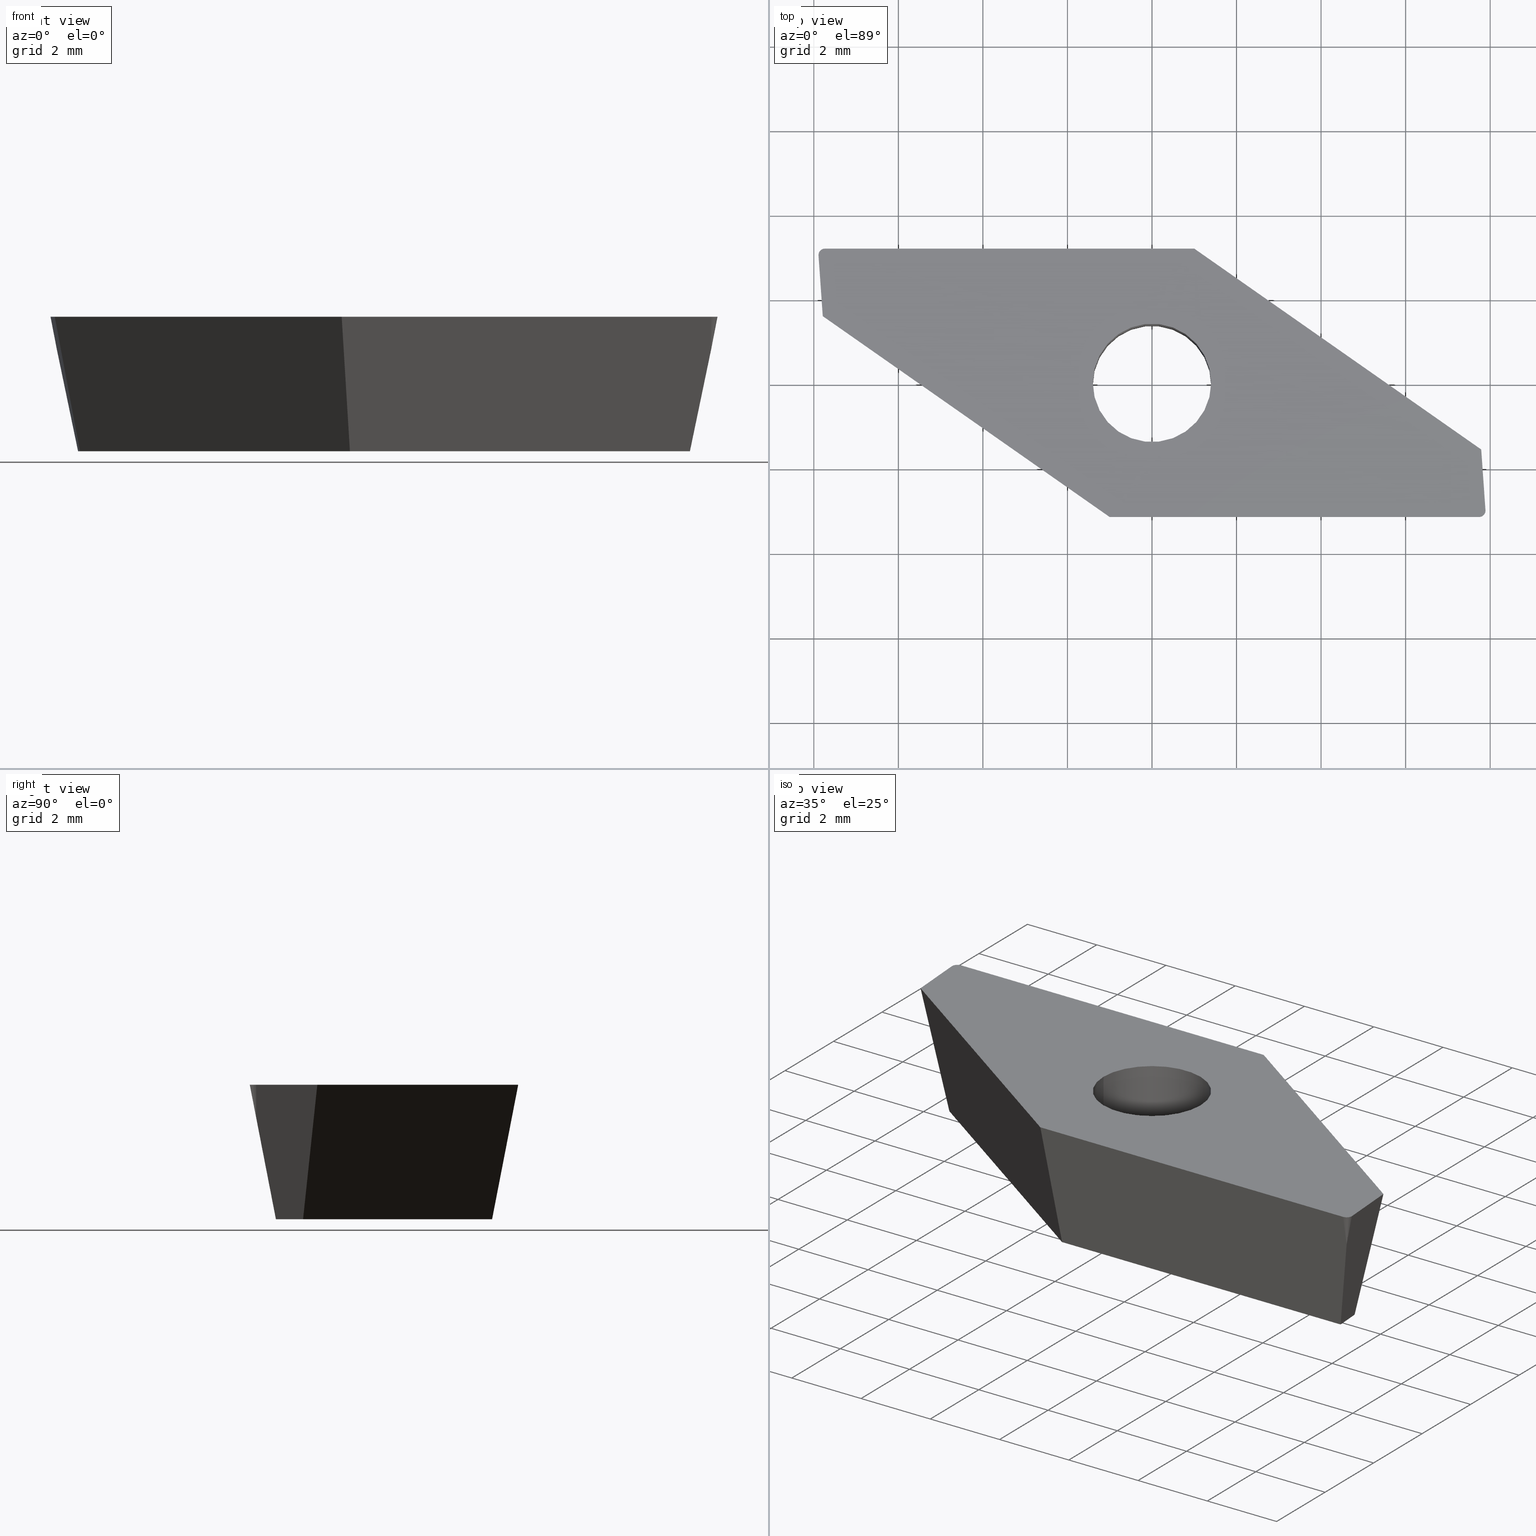
[diagram: canonical four-view strip — front | top / right | iso, engineering-drawing reading convention]
A machine part, canonical four-view strip (front | top / right | iso — engineering-drawing reading convention). The complete STEP part file that produces these views, byte-faithful:
ISO-10303-21;
HEADER;
FILE_DESCRIPTION (( 'STEP AP214' ),
    '1' );
FILE_NAME ('VP.. 1003015 .L.step',
    '2017-03-30T12:57:40',
    ( '' ),
    ( '' ),
    'SwSTEP 2.0',
    'SolidWorks 2016',
    '' );
FILE_SCHEMA (( 'AUTOMOTIVE_DESIGN' ));
ENDSEC;

DATA;
#1 = ADVANCED_FACE ( 'NONE', ( #128 ), #110, .T. ) ;
#2 = PRESENTATION_STYLE_ASSIGNMENT (( #65 ) ) ;
#3 = CARTESIAN_POINT ( 'NONE',  ( -7.788289079147451100, 1.577459403657728100, 0.0000000000000000000 ) ) ;
#4 = ORIENTED_EDGE ( 'NONE', *, *, #435, .T. ) ;
#5 = ORIENTED_EDGE ( 'NONE', *, *, #449, .T. ) ;
#6 = LINE ( 'NONE', #281, #9 ) ;
#7 = CARTESIAN_POINT ( 'NONE',  ( -7.739144693496299100, 3.024999999999999500, 0.0000000000000000000 ) ) ;
#8 = CARTESIAN_POINT ( 'NONE',  ( 1.001073654690764100, 3.174999999999999800, 0.0000000000000000000 ) ) ;
#9 = VECTOR ( 'NONE', #415, 999.9999999999998900 ) ;
#10 = LINE ( 'NONE', #142, #314 ) ;
#11 = FACE_OUTER_BOUND ( 'NONE', #346, .T. ) ;
#12 = EDGE_CURVE ( 'NONE', #273, #405, #113, .T. ) ;
#13 = CARTESIAN_POINT ( 'NONE',  ( 7.433744630409207400, -2.083801351424742400, -3.180000000000000200 ) ) ;
#14 = DIRECTION ( 'NONE',  ( 0.8191520442889951300, -0.5735764363510413900, 0.0000000000000000000 ) ) ;
#15 = LINE ( 'NONE', #68, #20 ) ;
#16 = PRODUCT_DEFINITION_FORMATION_WITH_SPECIFIED_SOURCE ( 'ANY', '', #377, .NOT_KNOWN. ) ;
#17 = PLANE ( 'NONE',  #450 ) ;
#18 =( NAMED_UNIT ( * ) SI_UNIT ( $, .STERADIAN. ) SOLID_ANGLE_UNIT ( ) );
#19 = EDGE_CURVE ( 'NONE', #359, #355, #259, .T. ) ;
#20 = VECTOR ( 'NONE', #178, 1000.000000000000000 ) ;
#21 = PRESENTATION_STYLE_ASSIGNMENT (( #269 ) ) ;
#22 = PRODUCT_DEFINITION_CONTEXT ( 'detailed design', #26, 'design' ) ;
#23 = PRODUCT_CONTEXT ( 'NONE', #38, 'mechanical' ) ;
#24 = APPLICATION_PROTOCOL_DEFINITION ( 'draft international standard', 'automotive_design', 1998, #38 ) ;
#25 = APPLICATION_PROTOCOL_DEFINITION ( 'draft international standard', 'automotive_design', 1998, #26 ) ;
#26 = APPLICATION_CONTEXT ( 'automotive_design' ) ;
#27 = PRODUCT_CONTEXT ( 'NONE', #35, 'mechanical' ) ;
#28 = AXIS2_PLACEMENT_3D ( 'NONE', #161, #192, #184 ) ;
#29 = LINE ( 'NONE', #119, #275 ) ;
#30 = DIRECTION ( 'NONE',  ( -0.2004640746510998100, 0.1869357738407769200, 0.9617011860410842300 ) ) ;
#31 = APPLICATION_PROTOCOL_DEFINITION ( 'draft international standard', 'automotive_design', 1998, #35 ) ;
#32 = VECTOR ( 'NONE', #30, 1000.000000000000100 ) ;
#33 = CARTESIAN_POINT ( 'NONE',  ( -7.888779301035271800, 3.014536528938380300, -1.291725244562808000E-016 ) ) ;
#34 = DIRECTION ( 'NONE',  ( 1.000000000000000000, 1.581056252441636400E-016, 0.0000000000000000000 ) ) ;
#35 = APPLICATION_CONTEXT ( 'automotive_design' ) ;
#36 = LINE ( 'NONE', #357, #32 ) ;
#37 = CARTESIAN_POINT ( 'NONE',  ( 7.900000000000002100, -3.174999999999999400, 0.0000000000000000000 ) ) ;
#38 = APPLICATION_CONTEXT ( 'automotive_design' ) ;
#39 = DIRECTION ( 'NONE',  ( 0.06005326349153968000, 0.1904646183547176200, 0.9798555172570124800 ) ) ;
#40 = DIRECTION ( 'NONE',  ( 1.000000000000000000, 0.0000000000000000000, 0.0000000000000000000 ) ) ;
#41 = FACE_OUTER_BOUND ( 'NONE', #208, .T. ) ;
#42 = EDGE_CURVE ( 'NONE', #355, #359, #111, .T. ) ;
#43 = DIRECTION ( 'NONE',  ( -0.8191520442889952400, 0.5735764363510411600, 0.0000000000000000000 ) ) ;
#44 = CARTESIAN_POINT ( 'NONE',  ( -7.237137390861797700, 2.556870616942053000, -3.180000000000000200 ) ) ;
#45 = DIRECTION ( 'NONE',  ( 0.0000000000000000000, 0.0000000000000000000, 1.000000000000000000 ) ) ;
#46 = DIRECTION ( 'NONE',  ( 1.000000000000000000, 0.0000000000000000000, 0.0000000000000000000 ) ) ;
#47 = VECTOR ( 'NONE', #39, 1000.000000000000100 ) ;
#48 = DIRECTION ( 'NONE',  ( 0.0000000000000000000, 0.0000000000000000000, 1.000000000000000000 ) ) ;
#49 = ORIENTED_EDGE ( 'NONE', *, *, #246, .T. ) ;
#50 = CONICAL_SURFACE ( 'NONE', #389, 0.1499999999999999700, 0.1919862177193767100 ) ;
#51 = VECTOR ( 'NONE', #245, 1000.000000000000000 ) ;
#52 = LINE ( 'NONE', #8, #47 ) ;
#53 = DIRECTION ( 'NONE',  ( -0.5630382217072208400, -0.8041019140508024500, -0.1908089953765452500 ) ) ;
#54 = DIRECTION ( 'NONE',  ( -1.000000000000000000, -1.581056252441636400E-016, 0.0000000000000000000 ) ) ;
#55 = LINE ( 'NONE', #79, #51 ) ;
#56 = FACE_OUTER_BOUND ( 'NONE', #166, .T. ) ;
#57 = SURFACE_SIDE_STYLE ('',( #218 ) ) ;
#58 = FILL_AREA_STYLE ('',( #59 ) ) ;
#59 = FILL_AREA_STYLE_COLOUR ( '', #264 ) ;
#60 =( NAMED_UNIT ( * ) SI_UNIT ( $, .STERADIAN. ) SOLID_ANGLE_UNIT ( ) );
#61 =( NAMED_UNIT ( * ) PLANE_ANGLE_UNIT ( ) SI_UNIT ( $, .RADIAN. ) );
#62 =( LENGTH_UNIT ( ) NAMED_UNIT ( * ) SI_UNIT ( .MILLI., .METRE. ) );
#63 = FACE_OUTER_BOUND ( 'NONE', #288, .T. ) ;
#64 = STYLED_ITEM ( 'NONE', ( #2 ), #363 ) ;
#65 = SURFACE_STYLE_USAGE ( .BOTH. , #57 ) ;
#66 = DIRECTION ( 'NONE',  ( -0.0000000000000000000, -0.0000000000000000000, -1.000000000000000000 ) ) ;
#67 =( GEOMETRIC_REPRESENTATION_CONTEXT ( 3 ) GLOBAL_UNCERTAINTY_ASSIGNED_CONTEXT ( ( #114 ) ) GLOBAL_UNIT_ASSIGNED_CONTEXT ( ( #73, #83, #82 ) ) REPRESENTATION_CONTEXT ( 'NONE', 'WORKASPACE' ) );
#68 = CARTESIAN_POINT ( 'NONE',  ( 7.900000000000002100, -3.174999999999999400, 0.0000000000000000000 ) ) ;
#69 = CIRCLE ( 'NONE', #112, 0.1499999999999999700 ) ;
#70 = DIRECTION ( 'NONE',  ( 1.157466550957716500E-017, -0.1908089953765452500, -0.9816271834476638600 ) ) ;
#71 = LINE ( 'NONE', #308, #385 ) ;
#72 = FACE_BOUND ( 'NONE', #254, .T. ) ;
#73 =( LENGTH_UNIT ( ) NAMED_UNIT ( * ) SI_UNIT ( .MILLI., .METRE. ) );
#74 = DIRECTION ( 'NONE',  ( -0.06975647374412560800, 0.9975640502598243100, 0.0000000000000000000 ) ) ;
#75 = CARTESIAN_POINT ( 'NONE',  ( -7.900000000000000400, 3.174999999999999400, 0.0000000000000000000 ) ) ;
#76 = LINE ( 'NONE', #37, #105 ) ;
#77 = PRODUCT_DEFINITION_SHAPE ( 'NONE', 'NONE',  #297 ) ;
#78 = SHAPE_DEFINITION_REPRESENTATION ( #77, #363 ) ;
#79 = CARTESIAN_POINT ( 'NONE',  ( 1.001073654690764100, 2.556870616942053400, -3.180000000000000200 ) ) ;
#80 = DIRECTION ( 'NONE',  ( 0.8191520442889951300, -0.5735764363510413900, -0.0000000000000000000 ) ) ;
#81 = PRODUCT_RELATED_PRODUCT_CATEGORY ( 'part', '', ( #377 ) ) ;
#82 =( NAMED_UNIT ( * ) SI_UNIT ( $, .STERADIAN. ) SOLID_ANGLE_UNIT ( ) );
#83 =( NAMED_UNIT ( * ) PLANE_ANGLE_UNIT ( ) SI_UNIT ( $, .RADIAN. ) );
#84 = CARTESIAN_POINT ( 'NONE',  ( -0.0000000000000000000, 0.0000000000000000000, -3.180000000000000200 ) ) ;
#85 = DIRECTION ( 'NONE',  ( 0.5630382217072210600, 0.8041019140508023400, -0.1908089953765452800 ) ) ;
#86 = CARTESIAN_POINT ( 'NONE',  ( 1.399999999999999900, 4.989732346119967600E-017, -3.180000000000000200 ) ) ;
#87 = DIRECTION ( 'NONE',  ( 0.0000000000000000000, 0.0000000000000000000, -1.000000000000000000 ) ) ;
#88 = AXIS2_PLACEMENT_3D ( 'NONE', #116, #85, #93 ) ;
#89 = CARTESIAN_POINT ( 'NONE',  ( 0.0000000000000000000, 0.0000000000000000000, -3.180000000000000200 ) ) ;
#90 = CARTESIAN_POINT ( 'NONE',  ( -1.399999999999999900, -2.213478753418290800E-016, 0.0000000000000000000 ) ) ;
#91 = PLANE ( 'NONE',  #392 ) ;
#92 = VECTOR ( 'NONE', #148, 1000.000000000000000 ) ;
#93 = DIRECTION ( 'NONE',  ( 0.8191520442889951300, -0.5735764363510413900, 0.0000000000000000000 ) ) ;
#94 = EDGE_CURVE ( 'NONE', #272, #403, #115, .T. ) ;
#95 = CARTESIAN_POINT ( 'NONE',  ( 0.0000000000000000000, 0.0000000000000000000, 0.0000000000000000000 ) ) ;
#96 = CARTESIAN_POINT ( 'NONE',  ( 7.739144693496300900, -3.024999999999999500, 0.0000000000000000000 ) ) ;
#97 = DIRECTION ( 'NONE',  ( 1.000000000000000000, 1.581056252441636400E-016, 0.0000000000000000000 ) ) ;
#98 = CARTESIAN_POINT ( 'NONE',  ( 0.0000000000000000000, 0.0000000000000000000, 0.0000000000000000000 ) ) ;
#99 = PLANE ( 'NONE',  #379 ) ;
#100 = CARTESIAN_POINT ( 'NONE',  ( 7.192231910145610900, -1.914692324122641700, -3.180000000000000200 ) ) ;
#101 = APPLICATION_PROTOCOL_DEFINITION ( 'draft international standard', 'automotive_design', 1998, #102 ) ;
#102 = APPLICATION_CONTEXT ( 'automotive_design' ) ;
#103 = SURFACE_STYLE_FILL_AREA ( #180 ) ;
#104 = DIRECTION ( 'NONE',  ( -0.0000000000000000000, 0.0000000000000000000, -1.000000000000000000 ) ) ;
#105 = VECTOR ( 'NONE', #398, 1000.000000000000100 ) ;
#106 = MANIFOLD_SOLID_BREP ( 'Spiegeln1', #361 ) ;
#107 = VECTOR ( 'NONE', #235, 1000.000000000000000 ) ;
#108 = CARTESIAN_POINT ( 'NONE',  ( -1.399999999999999900, -2.213478753418290800E-016, -3.180000000000000200 ) ) ;
#109 = VERTEX_POINT ( 'NONE', #400 ) ;
#110 = CONICAL_SURFACE ( 'NONE', #286, 0.1499999999999999700, 0.1919862177193767100 ) ;
#111 = CIRCLE ( 'NONE', #323, 1.399999999999999900 ) ;
#112 = AXIS2_PLACEMENT_3D ( 'NONE', #7, #409, #407 ) ;
#113 = CIRCLE ( 'NONE', #283, 0.1499999999999999700 ) ;
#114 = UNCERTAINTY_MEASURE_WITH_UNIT (LENGTH_MEASURE( 1.000000000000000100E-005 ), #73, 'distance_accuracy_value', 'NONE');
#115 = LINE ( 'NONE', #149, #107 ) ;
#116 = CARTESIAN_POINT ( 'NONE',  ( 7.788289079147451900, -1.577459403657730300, 0.0000000000000000000 ) ) ;
#117 = CARTESIAN_POINT ( 'NONE',  ( 7.739144693496300000, -3.024999999999999500, -0.7716831023955449400 ) ) ;
#118 = COLOUR_RGB ( '',0.7960784313725489700, 0.8235294117647058400, 0.9372549019607843100 ) ;
#119 = CARTESIAN_POINT ( 'NONE',  ( 7.888779301035273600, -3.014536528938380300, -9.275010772434588700E-017 ) ) ;
#120 = DIRECTION ( 'NONE',  ( -0.06005326349153966600, -0.1904646183547176200, 0.9798555172570124800 ) ) ;
#121 = CARTESIAN_POINT ( 'NONE',  ( 1.399999999999999900, 4.989732346119967600E-017, 0.0000000000000000000 ) ) ;
#122 = PLANE ( 'NONE',  #88 ) ;
#123 = EDGE_CURVE ( 'NONE', #252, #405, #6, .T. ) ;
#124 = DIRECTION ( 'NONE',  ( 1.000000000000000000, 6.066100545593014700E-017, -0.0000000000000000000 ) ) ;
#125 = CARTESIAN_POINT ( 'NONE',  ( 1.001073654690764100, 3.174999999999999800, 0.0000000000000000000 ) ) ;
#126 = DIRECTION ( 'NONE',  ( 0.0000000000000000000, 0.0000000000000000000, 1.000000000000000000 ) ) ;
#127 = CIRCLE ( 'NONE', #358, 1.399999999999999900 ) ;
#128 = FACE_OUTER_BOUND ( 'NONE', #196, .T. ) ;
#129 = VERTEX_POINT ( 'NONE', #171 ) ;
#130 = CARTESIAN_POINT ( 'NONE',  ( -0.0000000000000000000, 0.0000000000000000000, -3.180000000000000200 ) ) ;
#131 = DIRECTION ( 'NONE',  ( -5.954649193080809200E-017, 0.9816271834476639800, -0.1908089953765452800 ) ) ;
#132 = EDGE_LOOP ( 'NONE', ( #232, #233, #237, #239, #241 ) ) ;
#133 = DIRECTION ( 'NONE',  ( -3.016797551621942100E-017, 0.1908089953765452800, 0.9816271834476639800 ) ) ;
#134 = CARTESIAN_POINT ( 'NONE',  ( 7.739144693496300900, -3.024999999999999500, 0.0000000000000000000 ) ) ;
#135 = DIRECTION ( 'NONE',  ( -3.016797551621942100E-017, 0.1908089953765452800, -0.9816271834476639800 ) ) ;
#136 = ORIENTED_EDGE ( 'NONE', *, *, #123, .T. ) ;
#137 = ORIENTED_EDGE ( 'NONE', *, *, #399, .T. ) ;
#138 = CARTESIAN_POINT ( 'NONE',  ( 7.788289079147451900, -1.577459403657730300, 0.0000000000000000000 ) ) ;
#139 = ORIENTED_EDGE ( 'NONE', *, *, #391, .F. ) ;
#140 = DIRECTION ( 'NONE',  ( 5.954649193080809200E-017, -0.9816271834476639800, -0.1908089953765452800 ) ) ;
#141 = ORIENTED_EDGE ( 'NONE', *, *, #419, .T. ) ;
#142 = CARTESIAN_POINT ( 'NONE',  ( -7.788289079147451100, 1.577459403657728100, 0.0000000000000000000 ) ) ;
#143 = DIRECTION ( 'NONE',  ( 0.0000000000000000000, 0.0000000000000000000, 1.000000000000000000 ) ) ;
#144 = CARTESIAN_POINT ( 'NONE',  ( 1.001073654690764100, 3.174999999999999800, 0.0000000000000000000 ) ) ;
#145 = CARTESIAN_POINT ( 'NONE',  ( 7.788289079147451900, -1.577459403657730300, 0.0000000000000000000 ) ) ;
#146 = UNCERTAINTY_MEASURE_WITH_UNIT (LENGTH_MEASURE( 1.000000000000000100E-005 ), #198, 'distance_accuracy_value', 'NONE');
#147 = DIRECTION ( 'NONE',  ( 0.06975647374412621800, -0.9975640502598242000, 0.0000000000000000000 ) ) ;
#148 = DIRECTION ( 'NONE',  ( -1.000000000000000000, -6.066100545593014700E-017, 0.0000000000000000000 ) ) ;
#149 = CARTESIAN_POINT ( 'NONE',  ( -1.001073654690762100, -3.174999999999999800, 0.0000000000000000000 ) ) ;
#150 = DIRECTION ( 'NONE',  ( -0.1832382521941806300, -0.1036712150141736200, 0.9775868360970839700 ) ) ;
#151 = CARTESIAN_POINT ( 'NONE',  ( -0.0000000000000000000, 0.0000000000000000000, -3.180000000000000200 ) ) ;
#152 = CARTESIAN_POINT ( 'NONE',  ( 7.283376349052112200, -3.218118526079754000, -3.180000000000000200 ) ) ;
#153 = DIRECTION ( 'NONE',  ( -0.06975647374412560800, 0.9975640502598242000, 0.0000000000000000000 ) ) ;
#154 = FACE_OUTER_BOUND ( 'NONE', #337, .T. ) ;
#155 = VERTEX_POINT ( 'NONE', #393 ) ;
#156 = LINE ( 'NONE', #202, #92 ) ;
#157 = CARTESIAN_POINT ( 'NONE',  ( -7.283376349052110400, 3.218118526079753600, -3.180000000000000200 ) ) ;
#158 = DIRECTION ( 'NONE',  ( 1.000000000000000000, 0.0000000000000000000, 0.0000000000000000000 ) ) ;
#159 = DIRECTION ( 'NONE',  ( -0.1903441942538345300, -0.01331016267612696200, 0.9816271834476638600 ) ) ;
#160 = DIRECTION ( 'NONE',  ( 0.0000000000000000000, 0.0000000000000000000, 1.000000000000000000 ) ) ;
#161 = CARTESIAN_POINT ( 'NONE',  ( 7.900000000000002100, -3.174999999999999400, 0.0000000000000000000 ) ) ;
#162 = DIRECTION ( 'NONE',  ( -0.8191520442889952400, 0.5735764363510411600, 0.0000000000000000000 ) ) ;
#163 = DIRECTION ( 'NONE',  ( 1.000000000000000000, 0.0000000000000000000, 0.0000000000000000000 ) ) ;
#164 = DIRECTION ( 'NONE',  ( 0.1903441942538345300, 0.01331016267612708200, 0.9816271834476638600 ) ) ;
#165 = PLANE ( 'NONE',  #356 ) ;
#166 = EDGE_LOOP ( 'NONE', ( #318, #321, #325 ) ) ;
#167 = ORIENTED_EDGE ( 'NONE', *, *, #365, .F. ) ;
#168 = ORIENTED_EDGE ( 'NONE', *, *, #170, .F. ) ;
#169 = ORIENTED_EDGE ( 'NONE', *, *, #394, .T. ) ;
#170 = EDGE_CURVE ( 'NONE', #263, #252, #76, .T. ) ;
#171 = CARTESIAN_POINT ( 'NONE',  ( 1.001073654690764100, 3.174999999999999800, 0.0000000000000000000 ) ) ;
#172 = PLANE ( 'NONE',  #28 ) ;
#173 = CARTESIAN_POINT ( 'NONE',  ( 7.739144693496300900, -3.024999999999999500, 0.0000000000000000000 ) ) ;
#174 = ORIENTED_EDGE ( 'NONE', *, *, #419, .F. ) ;
#175 = ORIENTED_EDGE ( 'NONE', *, *, #396, .F. ) ;
#176 = ORIENTED_EDGE ( 'NONE', *, *, #240, .T. ) ;
#177 = VECTOR ( 'NONE', #70, 1000.000000000000100 ) ;
#178 = DIRECTION ( 'NONE',  ( 0.06975647374412621800, -0.9975640502598242000, -0.0000000000000000000 ) ) ;
#179 = CARTESIAN_POINT ( 'NONE',  ( -7.192231910145610000, 1.914692324122639500, -3.180000000000000200 ) ) ;
#180 = FILL_AREA_STYLE ('',( #302 ) ) ;
#181 = VECTOR ( 'NONE', #14, 1000.000000000000000 ) ;
#182 = PLANE ( 'NONE',  #285 ) ;
#183 =( GEOMETRIC_REPRESENTATION_CONTEXT ( 3 ) GLOBAL_UNCERTAINTY_ASSIGNED_CONTEXT ( ( #146 ) ) GLOBAL_UNIT_ASSIGNED_CONTEXT ( ( #198, #213, #18 ) ) REPRESENTATION_CONTEXT ( 'NONE', 'WORKASPACE' ) );
#184 = DIRECTION ( 'NONE',  ( 0.1912579077465619300, 3.023895108716074100E-017, 0.9815398171874677400 ) ) ;
#185 = CARTESIAN_POINT ( 'NONE',  ( -7.739144693496298200, 3.024999999999999500, -0.7716831023955452700 ) ) ;
#186 = PRODUCT_DEFINITION_FORMATION_WITH_SPECIFIED_SOURCE ( 'ANY', '', #294, .NOT_KNOWN. ) ;
#187 = DIRECTION ( 'NONE',  ( -0.0000000000000000000, 0.0000000000000000000, -1.000000000000000000 ) ) ;
#188 = ADVANCED_FACE ( 'NONE', ( #72, #11 ), #17, .F. ) ;
#189 = PRESENTATION_LAYER_ASSIGNMENT (  '', '', ( #64 ) ) ;
#190 = VECTOR ( 'NONE', #120, 1000.000000000000100 ) ;
#191 = UNCERTAINTY_MEASURE_WITH_UNIT (LENGTH_MEASURE( 1.000000000000000100E-005 ), #62, 'distance_accuracy_value', 'NONE');
#192 = DIRECTION ( 'NONE',  ( 0.9792359889651950400, 0.06847485084868755500, -0.1908089953765452800 ) ) ;
#193 = CARTESIAN_POINT ( 'NONE',  ( -1.001073654690762100, -3.174999999999999800, 0.0000000000000000000 ) ) ;
#194 = DIRECTION ( 'NONE',  ( -0.0000000000000000000, -0.0000000000000000000, -1.000000000000000000 ) ) ;
#195 = CARTESIAN_POINT ( 'NONE',  ( -1.001073654690761300, -3.174999999999999800, 4.532429341667184100E-017 ) ) ;
#196 = EDGE_LOOP ( 'NONE', ( #326, #371, #338 ) ) ;
#197 = ORIENTED_EDGE ( 'NONE', *, *, #443, .T. ) ;
#198 =( LENGTH_UNIT ( ) NAMED_UNIT ( * ) SI_UNIT ( .MILLI., .METRE. ) );
#199 = ORIENTED_EDGE ( 'NONE', *, *, #240, .F. ) ;
#200 = DIRECTION ( 'NONE',  ( -1.000000000000000000, -1.581056252441636400E-016, 0.0000000000000000000 ) ) ;
#201 = ORIENTED_EDGE ( 'NONE', *, *, #238, .F. ) ;
#202 = CARTESIAN_POINT ( 'NONE',  ( -1.001073654690762100, -2.556870616942053400, -3.180000000000000200 ) ) ;
#203 = DIRECTION ( 'NONE',  ( 0.1912579077465619300, 3.023895108716074100E-017, -0.9815398171874677400 ) ) ;
#204 = ADVANCED_FACE ( 'NONE', ( #56 ), #50, .T. ) ;
#205 = ORIENTED_EDGE ( 'NONE', *, *, #274, .T. ) ;
#206 = AXIS2_PLACEMENT_3D ( 'NONE', #212, #207, #203 ) ;
#207 = DIRECTION ( 'NONE',  ( -0.9792359889651950400, -0.06847485084868693000, -0.1908089953765452800 ) ) ;
#208 = EDGE_LOOP ( 'NONE', ( #334, #136, #137 ) ) ;
#209 = ORIENTED_EDGE ( 'NONE', *, *, #423, .F. ) ;
#210 = CARTESIAN_POINT ( 'NONE',  ( -7.788289079147451100, 1.577459403657728100, 3.148184459698170000E-018 ) ) ;
#211 = ORIENTED_EDGE ( 'NONE', *, *, #432, .F. ) ;
#212 = CARTESIAN_POINT ( 'NONE',  ( -7.900000000000000400, 3.174999999999999400, 0.0000000000000000000 ) ) ;
#213 =( NAMED_UNIT ( * ) PLANE_ANGLE_UNIT ( ) SI_UNIT ( $, .RADIAN. ) );
#214 = PLANE ( 'NONE',  #206 ) ;
#215 = FACE_BOUND ( 'NONE', #428, .T. ) ;
#216 = DIRECTION ( 'NONE',  ( -0.8191520442889952400, 0.5735764363510411600, 0.0000000000000000000 ) ) ;
#217 = CARTESIAN_POINT ( 'NONE',  ( -7.433744630409206500, 2.083801351424740200, -3.180000000000000200 ) ) ;
#218 = SURFACE_STYLE_FILL_AREA ( #58 ) ;
#219 = ORIENTED_EDGE ( 'NONE', *, *, #369, .F. ) ;
#220 = CARTESIAN_POINT ( 'NONE',  ( -1.001073654690762100, -3.174999999999999800, 0.0000000000000000000 ) ) ;
#221 = CARTESIAN_POINT ( 'NONE',  ( 7.889144693496301200, -3.024999999999999500, 0.0000000000000000000 ) ) ;
#222 = ORIENTED_EDGE ( 'NONE', *, *, #274, .F. ) ;
#223 = ORIENTED_EDGE ( 'NONE', *, *, #439, .T. ) ;
#224 = VERTEX_POINT ( 'NONE', #249 ) ;
#225 = DIRECTION ( 'NONE',  ( 0.0000000000000000000, 0.0000000000000000000, -1.000000000000000000 ) ) ;
#226 = ORIENTED_EDGE ( 'NONE', *, *, #435, .F. ) ;
#227 = FACE_OUTER_BOUND ( 'NONE', #336, .T. ) ;
#228 = DIRECTION ( 'NONE',  ( 0.0000000000000000000, 0.0000000000000000000, 1.000000000000000000 ) ) ;
#229 = DIRECTION ( 'NONE',  ( 0.0000000000000000000, 0.0000000000000000000, 1.000000000000000000 ) ) ;
#230 = ORIENTED_EDGE ( 'NONE', *, *, #422, .F. ) ;
#231 = ORIENTED_EDGE ( 'NONE', *, *, #444, .T. ) ;
#232 = ORIENTED_EDGE ( 'NONE', *, *, #94, .T. ) ;
#233 = ORIENTED_EDGE ( 'NONE', *, *, #444, .F. ) ;
#234 = CARTESIAN_POINT ( 'NONE',  ( -0.0000000000000000000, 0.0000000000000000000, -3.180000000000000200 ) ) ;
#235 = DIRECTION ( 'NONE',  ( -1.000000000000000000, -6.066100545593014700E-017, 0.0000000000000000000 ) ) ;
#236 = ADVANCED_FACE ( 'NONE', ( #63 ), #91, .T. ) ;
#237 = ORIENTED_EDGE ( 'NONE', *, *, #437, .F. ) ;
#238 = EDGE_CURVE ( 'NONE', #310, #109, #55, .T. ) ;
#239 = ORIENTED_EDGE ( 'NONE', *, *, #170, .T. ) ;
#240 = EDGE_CURVE ( 'NONE', #109, #129, #52, .T. ) ;
#241 = ORIENTED_EDGE ( 'NONE', *, *, #414, .F. ) ;
#242 = MECHANICAL_DESIGN_GEOMETRIC_PRESENTATION_REPRESENTATION (  '', ( #64 ), #352 ) ;
#243 = VERTEX_POINT ( 'NONE', #100 ) ;
#244 = LINE ( 'NONE', #75, #279 ) ;
#245 = DIRECTION ( 'NONE',  ( 1.000000000000000000, 6.066100545593014700E-017, 0.0000000000000000000 ) ) ;
#246 = EDGE_CURVE ( 'NONE', #341, #273, #15, .T. ) ;
#247 = ORIENTED_EDGE ( 'NONE', *, *, #303, .F. ) ;
#248 = FACE_OUTER_BOUND ( 'NONE', #340, .T. ) ;
#249 = CARTESIAN_POINT ( 'NONE',  ( -0.8061782088420796900, -2.556870616942053400, -3.180000000000000200 ) ) ;
#250 = SURFACE_SIDE_STYLE ('',( #103 ) ) ;
#251 = ORIENTED_EDGE ( 'NONE', *, *, #408, .F. ) ;
#252 = VERTEX_POINT ( 'NONE', #117 ) ;
#253 = ORIENTED_EDGE ( 'NONE', *, *, #238, .T. ) ;
#254 = EDGE_LOOP ( 'NONE', ( #289, #291 ) ) ;
#255 = DIRECTION ( 'NONE',  ( -1.000000000000000000, -1.581056252441636400E-016, 0.0000000000000000000 ) ) ;
#256 = ORIENTED_EDGE ( 'NONE', *, *, #396, .T. ) ;
#257 = CARTESIAN_POINT ( 'NONE',  ( -7.739144693496299100, 3.174999999999999400, 5.764875297616103600E-018 ) ) ;
#258 = DIRECTION ( 'NONE',  ( -1.000000000000000000, -1.581056252441636400E-016, 0.0000000000000000000 ) ) ;
#259 = CIRCLE ( 'NONE', #350, 1.399999999999999900 ) ;
#260 = AXIS2_PLACEMENT_3D ( 'NONE', #98, #48, #46 ) ;
#261 = DIRECTION ( 'NONE',  ( 0.1832382521941805500, 0.1036712150141736300, 0.9775868360970839700 ) ) ;
#262 = AXIS2_PLACEMENT_3D ( 'NONE', #84, #66, #54 ) ;
#263 = VERTEX_POINT ( 'NONE', #364 ) ;
#264 = COLOUR_RGB ( '',0.7960784313725489700, 0.8235294117647058400, 0.9372549019607843100 ) ;
#265 = ORIENTED_EDGE ( 'NONE', *, *, #391, .T. ) ;
#266 = EDGE_LOOP ( 'NONE', ( #366, #370, #342, #345 ) ) ;
#267 = EDGE_LOOP ( 'NONE', ( #139, #141, #49, #167, #168 ) ) ;
#268 = ORIENTED_EDGE ( 'NONE', *, *, #437, .T. ) ;
#269 = SURFACE_STYLE_USAGE ( .BOTH. , #250 ) ;
#270 = DIRECTION ( 'NONE',  ( 0.0000000000000000000, 0.0000000000000000000, 1.000000000000000000 ) ) ;
#271 = CARTESIAN_POINT ( 'NONE',  ( 7.788289079147451900, -1.577459403657730300, 0.0000000000000000000 ) ) ;
#272 = VERTEX_POINT ( 'NONE', #328 ) ;
#273 = VERTEX_POINT ( 'NONE', #390 ) ;
#274 = EDGE_CURVE ( 'NONE', #310, #320, #36, .T. ) ;
#275 = VECTOR ( 'NONE', #164, 1000.000000000000100 ) ;
#276 = DIRECTION ( 'NONE',  ( 0.0000000000000000000, 0.0000000000000000000, 1.000000000000000000 ) ) ;
#277 = LINE ( 'NONE', #125, #298 ) ;
#278 = ORIENTED_EDGE ( 'NONE', *, *, #422, .T. ) ;
#279 = VECTOR ( 'NONE', #74, 999.9999999999998900 ) ;
#280 = CYLINDRICAL_SURFACE ( 'NONE', #448, 1.399999999999999900 ) ;
#281 = CARTESIAN_POINT ( 'NONE',  ( 7.889144693496301200, -3.024999999999999500, 0.0000000000000000000 ) ) ;
#282 = CARTESIAN_POINT ( 'NONE',  ( 1.399999999999999900, 4.989732346119967600E-017, -3.180000000000000200 ) ) ;
#283 = AXIS2_PLACEMENT_3D ( 'NONE', #360, #187, #348 ) ;
#284 = ORIENTED_EDGE ( 'NONE', *, *, #432, .T. ) ;
#285 = AXIS2_PLACEMENT_3D ( 'NONE', #193, #140, #135 ) ;
#286 = AXIS2_PLACEMENT_3D ( 'NONE', #96, #228, #433 ) ;
#287 = DIRECTION ( 'NONE',  ( -1.157466550957716500E-017, 0.1908089953765452500, -0.9816271834476638600 ) ) ;
#288 = EDGE_LOOP ( 'NONE', ( #223, #226, #230, #231 ) ) ;
#289 = ORIENTED_EDGE ( 'NONE', *, *, #42, .T. ) ;
#290 = LINE ( 'NONE', #195, #190 ) ;
#291 = ORIENTED_EDGE ( 'NONE', *, *, #19, .T. ) ;
#292 = AXIS2_PLACEMENT_3D ( 'NONE', #95, #45, #40 ) ;
#293 = ORIENTED_EDGE ( 'NONE', *, *, #449, .F. ) ;
#294 = PRODUCT ( 'VP.. 1003015 .L', 'VP.. 1003015 .L', '', ( #23 ) ) ;
#295 = CARTESIAN_POINT ( 'NONE',  ( -7.739144693496299100, 3.024999999999999500, 0.0000000000000000000 ) ) ;
#296 = ORIENTED_EDGE ( 'NONE', *, *, #439, .F. ) ;
#297 = PRODUCT_DEFINITION ( 'UNKNOWN', '', #186, #410 ) ;
#298 = VECTOR ( 'NONE', #124, 1000.000000000000000 ) ;
#299 = ORIENTED_EDGE ( 'NONE', *, *, #94, .F. ) ;
#300 = PRODUCT_RELATED_PRODUCT_CATEGORY ( 'part', '', ( #294 ) ) ;
#301 = AXIS2_PLACEMENT_3D ( 'NONE', #173, #126, #158 ) ;
#302 = FILL_AREA_STYLE_COLOUR ( '', #118 ) ;
#303 = EDGE_CURVE ( 'NONE', #324, #347, #127, .T. ) ;
#304 = VERTEX_POINT ( 'NONE', #376 ) ;
#305 = FACE_OUTER_BOUND ( 'NONE', #132, .T. ) ;
#306 = ORIENTED_EDGE ( 'NONE', *, *, #399, .F. ) ;
#307 = ORIENTED_EDGE ( 'NONE', *, *, #12, .F. ) ;
#308 = CARTESIAN_POINT ( 'NONE',  ( 7.739144693496301700, -3.174999999999999400, 5.764875297616103600E-018 ) ) ;
#309 = ORIENTED_EDGE ( 'NONE', *, *, #246, .F. ) ;
#310 = VERTEX_POINT ( 'NONE', #44 ) ;
#311 = MECHANICAL_DESIGN_GEOMETRIC_PRESENTATION_REPRESENTATION (  '', ( #316 ), #183 ) ;
#312 = ORIENTED_EDGE ( 'NONE', *, *, #394, .F. ) ;
#313 = ORIENTED_EDGE ( 'NONE', *, *, #443, .F. ) ;
#314 = VECTOR ( 'NONE', #162, 1000.000000000000200 ) ;
#315 = ORIENTED_EDGE ( 'NONE', *, *, #329, .F. ) ;
#316 = STYLED_ITEM ( 'NONE', ( #21 ), #106 ) ;
#317 = VECTOR ( 'NONE', #150, 1000.000000000000000 ) ;
#318 = ORIENTED_EDGE ( 'NONE', *, *, #369, .T. ) ;
#319 = DIRECTION ( 'NONE',  ( -1.000000000000000000, -1.581056252441636400E-016, 0.0000000000000000000 ) ) ;
#320 = VERTEX_POINT ( 'NONE', #185 ) ;
#321 = ORIENTED_EDGE ( 'NONE', *, *, #329, .T. ) ;
#322 = DIRECTION ( 'NONE',  ( -0.0000000000000000000, -0.0000000000000000000, -1.000000000000000000 ) ) ;
#323 = AXIS2_PLACEMENT_3D ( 'NONE', #438, #335, #255 ) ;
#324 = VERTEX_POINT ( 'NONE', #436 ) ;
#325 = ORIENTED_EDGE ( 'NONE', *, *, #423, .T. ) ;
#326 = ORIENTED_EDGE ( 'NONE', *, *, #123, .F. ) ;
#327 = ORIENTED_EDGE ( 'NONE', *, *, #42, .F. ) ;
#328 = CARTESIAN_POINT ( 'NONE',  ( 7.739144693496301700, -3.174999999999999400, 0.0000000000000000000 ) ) ;
#329 = EDGE_CURVE ( 'NONE', #304, #353, #69, .T. ) ;
#330 = VECTOR ( 'NONE', #153, 1000.000000000000100 ) ;
#331 = CIRCLE ( 'NONE', #262, 1.399999999999999900 ) ;
#332 = EDGE_LOOP ( 'NONE', ( #375, #351, #327, #387 ) ) ;
#333 = FACE_OUTER_BOUND ( 'NONE', #266, .T. ) ;
#334 = ORIENTED_EDGE ( 'NONE', *, *, #414, .T. ) ;
#335 = DIRECTION ( 'NONE',  ( -0.0000000000000000000, -0.0000000000000000000, -1.000000000000000000 ) ) ;
#336 = EDGE_LOOP ( 'NONE', ( #197, #199, #201, #205, #209 ) ) ;
#337 = EDGE_LOOP ( 'NONE', ( #169, #174, #175, #176 ) ) ;
#338 = ORIENTED_EDGE ( 'NONE', *, *, #12, .T. ) ;
#339 = ADVANCED_FACE ( 'NONE', ( #41 ), #416, .T. ) ;
#340 = EDGE_LOOP ( 'NONE', ( #253, #256, #265, #268, #278, #284 ) ) ;
#341 = VERTEX_POINT ( 'NONE', #138 ) ;
#342 = ORIENTED_EDGE ( 'NONE', *, *, #411, .T. ) ;
#343 = PRESENTATION_LAYER_ASSIGNMENT (  '', '', ( #316 ) ) ;
#344 = LINE ( 'NONE', #157, #330 ) ;
#345 = ORIENTED_EDGE ( 'NONE', *, *, #19, .F. ) ;
#346 = EDGE_LOOP ( 'NONE', ( #293, #296, #299, #306, #307, #309, #312, #313, #315 ) ) ;
#347 = VERTEX_POINT ( 'NONE', #86 ) ;
#348 = DIRECTION ( 'NONE',  ( 1.000000000000000000, 8.673617379884038000E-014, 0.0000000000000000000 ) ) ;
#349 = CIRCLE ( 'NONE', #434, 0.1499999999999999700 ) ;
#350 = AXIS2_PLACEMENT_3D ( 'NONE', #384, #194, #406 ) ;
#351 = ORIENTED_EDGE ( 'NONE', *, *, #417, .T. ) ;
#352 =( GEOMETRIC_REPRESENTATION_CONTEXT ( 3 ) GLOBAL_UNCERTAINTY_ASSIGNED_CONTEXT ( ( #191 ) ) GLOBAL_UNIT_ASSIGNED_CONTEXT ( ( #62, #61, #60 ) ) REPRESENTATION_CONTEXT ( 'NONE', 'WORKASPACE' ) );
#353 = VERTEX_POINT ( 'NONE', #397 ) ;
#354 = FACE_OUTER_BOUND ( 'NONE', #382, .T. ) ;
#355 = VERTEX_POINT ( 'NONE', #90 ) ;
#356 = AXIS2_PLACEMENT_3D ( 'NONE', #144, #131, #133 ) ;
#357 = CARTESIAN_POINT ( 'NONE',  ( -7.900000000000000400, 3.174999999999999400, 0.0000000000000000000 ) ) ;
#358 = AXIS2_PLACEMENT_3D ( 'NONE', #130, #322, #319 ) ;
#359 = VERTEX_POINT ( 'NONE', #121 ) ;
#360 = CARTESIAN_POINT ( 'NONE',  ( 7.739144693496300900, -3.024999999999999500, 0.0000000000000000000 ) ) ;
#361 = CLOSED_SHELL ( 'NONE', ( #421, #339, #441, #445, #404, #425, #236, #442, #446, #188, #204, #1, #440 ) ) ;
#362 = CYLINDRICAL_SURFACE ( 'NONE', #418, 1.399999999999999900 ) ;
#363 = ADVANCED_BREP_SHAPE_REPRESENTATION ( 'VP.. 1003015 .L', ( #106, #260 ), #67 ) ;
#364 = CARTESIAN_POINT ( 'NONE',  ( 7.237137390861798600, -2.556870616942053000, -3.180000000000000200 ) ) ;
#365 = EDGE_CURVE ( 'NONE', #252, #273, #29, .T. ) ;
#366 = ORIENTED_EDGE ( 'NONE', *, *, #417, .F. ) ;
#367 = LINE ( 'NONE', #257, #177 ) ;
#368 = FACE_OUTER_BOUND ( 'NONE', #332, .T. ) ;
#369 = EDGE_CURVE ( 'NONE', #320, #304, #431, .T. ) ;
#370 = ORIENTED_EDGE ( 'NONE', *, *, #408, .T. ) ;
#371 = ORIENTED_EDGE ( 'NONE', *, *, #365, .T. ) ;
#372 = LINE ( 'NONE', #217, #402 ) ;
#373 = VECTOR ( 'NONE', #261, 1000.000000000000100 ) ;
#374 = VERTEX_POINT ( 'NONE', #179 ) ;
#375 = ORIENTED_EDGE ( 'NONE', *, *, #303, .T. ) ;
#376 = CARTESIAN_POINT ( 'NONE',  ( -7.888779301035271800, 3.014536528938380300, 0.0000000000000000000 ) ) ;
#377 = PRODUCT ( 'VP.. 1003015 .L', 'VP.. 1003015 .L', '', ( #27 ) ) ;
#378 = LINE ( 'NONE', #210, #317 ) ;
#379 = AXIS2_PLACEMENT_3D ( 'NONE', #89, #87, #97 ) ;
#380 = PRODUCT_DEFINITION_SHAPE ( 'NONE', 'NONE',  #427 ) ;
#381 = VECTOR ( 'NONE', #276, 1000.000000000000000 ) ;
#382 = EDGE_LOOP ( 'NONE', ( #211, #4, #5, #219, #222 ) ) ;
#383 = LINE ( 'NONE', #271, #373 ) ;
#384 = CARTESIAN_POINT ( 'NONE',  ( 0.0000000000000000000, 0.0000000000000000000, 0.0000000000000000000 ) ) ;
#385 = VECTOR ( 'NONE', #287, 1000.000000000000100 ) ;
#386 = LINE ( 'NONE', #282, #381 ) ;
#387 = ORIENTED_EDGE ( 'NONE', *, *, #411, .F. ) ;
#388 = VECTOR ( 'NONE', #229, 1000.000000000000000 ) ;
#389 = AXIS2_PLACEMENT_3D ( 'NONE', #295, #143, #401 ) ;
#390 = CARTESIAN_POINT ( 'NONE',  ( 7.888779301035273600, -3.014536528938380300, 0.0000000000000000000 ) ) ;
#391 = EDGE_CURVE ( 'NONE', #243, #263, #429, .T. ) ;
#392 = AXIS2_PLACEMENT_3D ( 'NONE', #3, #53, #43 ) ;
#393 = CARTESIAN_POINT ( 'NONE',  ( -7.788289079147451100, 1.577459403657728100, 0.0000000000000000000 ) ) ;
#394 = EDGE_CURVE ( 'NONE', #129, #341, #413, .T. ) ;
#395 = FACE_OUTER_BOUND ( 'NONE', #267, .T. ) ;
#396 = EDGE_CURVE ( 'NONE', #109, #243, #424, .T. ) ;
#397 = CARTESIAN_POINT ( 'NONE',  ( -7.739144693496299100, 3.174999999999999400, 0.0000000000000000000 ) ) ;
#398 = DIRECTION ( 'NONE',  ( 0.2004640746510999200, -0.1869357738407769200, 0.9617011860410842300 ) ) ;
#399 = EDGE_CURVE ( 'NONE', #405, #272, #349, .T. ) ;
#400 = CARTESIAN_POINT ( 'NONE',  ( 0.8061782088420823600, 2.556870616942053400, -3.180000000000000200 ) ) ;
#401 = DIRECTION ( 'NONE',  ( 1.000000000000000000, 0.0000000000000000000, 0.0000000000000000000 ) ) ;
#402 = VECTOR ( 'NONE', #216, 1000.000000000000000 ) ;
#403 = VERTEX_POINT ( 'NONE', #220 ) ;
#404 = ADVANCED_FACE ( 'NONE', ( #227 ), #165, .T. ) ;
#405 = VERTEX_POINT ( 'NONE', #221 ) ;
#406 = DIRECTION ( 'NONE',  ( -1.000000000000000000, -1.581056252441636400E-016, 0.0000000000000000000 ) ) ;
#407 = DIRECTION ( 'NONE',  ( 1.000000000000000000, 2.891205793294679000E-015, 0.0000000000000000000 ) ) ;
#408 = EDGE_CURVE ( 'NONE', #347, #324, #331, .T. ) ;
#409 = DIRECTION ( 'NONE',  ( -0.0000000000000000000, 0.0000000000000000000, -1.000000000000000000 ) ) ;
#410 = PRODUCT_DEFINITION_CONTEXT ( 'detailed design', #102, 'design' ) ;
#411 = EDGE_CURVE ( 'NONE', #324, #355, #430, .T. ) ;
#412 = VECTOR ( 'NONE', #159, 1000.000000000000100 ) ;
#413 = LINE ( 'NONE', #145, #420 ) ;
#414 = EDGE_CURVE ( 'NONE', #272, #252, #71, .T. ) ;
#415 = DIRECTION ( 'NONE',  ( 0.1908089953765452800, 3.016797551621942100E-017, 0.9816271834476639800 ) ) ;
#416 = CONICAL_SURFACE ( 'NONE', #301, 0.1499999999999999700, 0.1919862177193767100 ) ;
#417 = EDGE_CURVE ( 'NONE', #347, #359, #386, .T. ) ;
#418 = AXIS2_PLACEMENT_3D ( 'NONE', #234, #270, #258 ) ;
#419 = EDGE_CURVE ( 'NONE', #243, #341, #383, .T. ) ;
#420 = VECTOR ( 'NONE', #80, 1000.000000000000200 ) ;
#421 = ADVANCED_FACE ( 'NONE', ( #368 ), #362, .F. ) ;
#422 = EDGE_CURVE ( 'NONE', #224, #374, #372, .T. ) ;
#423 = EDGE_CURVE ( 'NONE', #353, #320, #367, .T. ) ;
#424 = LINE ( 'NONE', #13, #181 ) ;
#425 = ADVANCED_FACE ( 'NONE', ( #354 ), #214, .T. ) ;
#426 = CARTESIAN_POINT ( 'NONE',  ( 0.0000000000000000000, 0.0000000000000000000, 0.0000000000000000000 ) ) ;
#427 = PRODUCT_DEFINITION ( 'UNKNOWN', '', #16, #22 ) ;
#428 = EDGE_LOOP ( 'NONE', ( #247, #251 ) ) ;
#429 = LINE ( 'NONE', #152, #447 ) ;
#430 = LINE ( 'NONE', #108, #388 ) ;
#431 = LINE ( 'NONE', #33, #412 ) ;
#432 = EDGE_CURVE ( 'NONE', #374, #310, #344, .T. ) ;
#433 = DIRECTION ( 'NONE',  ( 1.000000000000000000, 0.0000000000000000000, 0.0000000000000000000 ) ) ;
#434 = AXIS2_PLACEMENT_3D ( 'NONE', #134, #104, #163 ) ;
#435 = EDGE_CURVE ( 'NONE', #374, #155, #378, .T. ) ;
#436 = CARTESIAN_POINT ( 'NONE',  ( -1.399999999999999900, -2.213478753418290800E-016, -3.180000000000000200 ) ) ;
#437 = EDGE_CURVE ( 'NONE', #263, #224, #156, .T. ) ;
#438 = CARTESIAN_POINT ( 'NONE',  ( 0.0000000000000000000, 0.0000000000000000000, 0.0000000000000000000 ) ) ;
#439 = EDGE_CURVE ( 'NONE', #403, #155, #10, .T. ) ;
#440 = ADVANCED_FACE ( 'NONE', ( #333 ), #280, .F. ) ;
#441 = ADVANCED_FACE ( 'NONE', ( #395 ), #172, .T. ) ;
#442 = ADVANCED_FACE ( 'NONE', ( #305 ), #182, .T. ) ;
#443 = EDGE_CURVE ( 'NONE', #353, #129, #277, .T. ) ;
#444 = EDGE_CURVE ( 'NONE', #224, #403, #290, .T. ) ;
#445 = ADVANCED_FACE ( 'NONE', ( #154 ), #122, .T. ) ;
#446 = ADVANCED_FACE ( 'NONE', ( #215, #248 ), #99, .T. ) ;
#447 = VECTOR ( 'NONE', #147, 1000.000000000000100 ) ;
#448 = AXIS2_PLACEMENT_3D ( 'NONE', #151, #160, #200 ) ;
#449 = EDGE_CURVE ( 'NONE', #155, #304, #244, .T. ) ;
#450 = AXIS2_PLACEMENT_3D ( 'NONE', #426, #225, #34 ) ;
ENDSEC;
END-ISO-10303-21;
